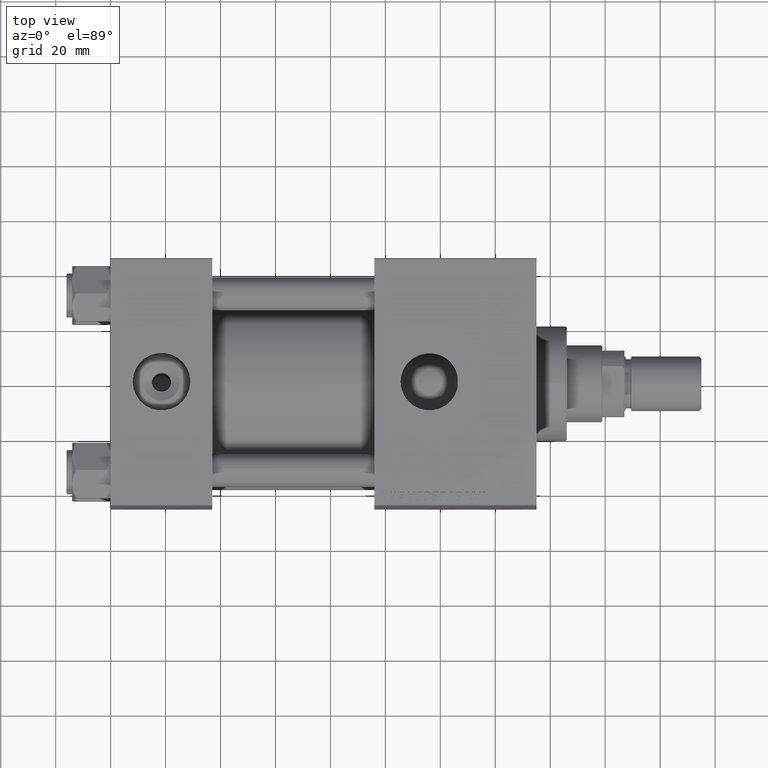
[diagram: clean part render]
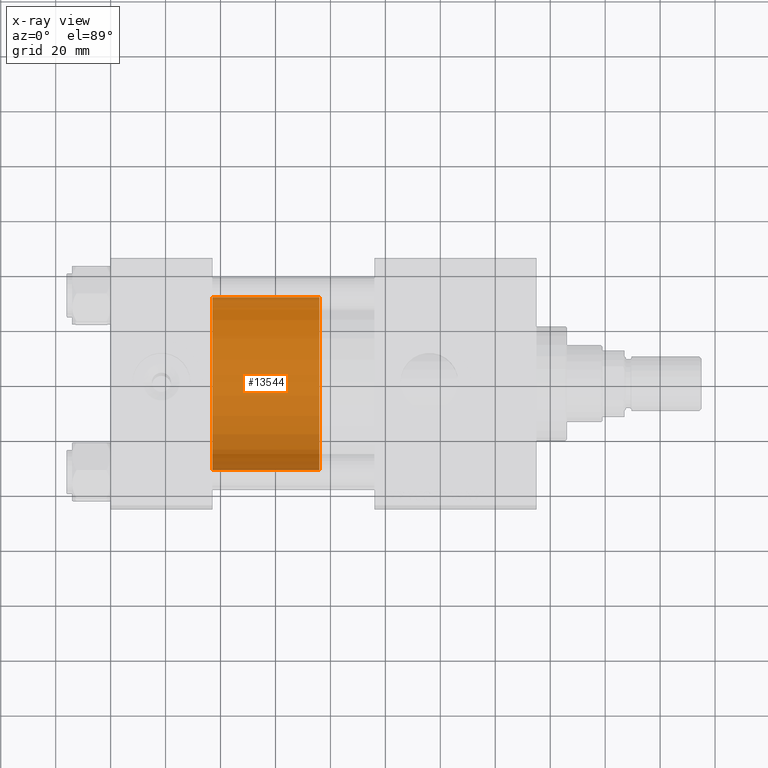
[diagram: x-ray — body ghosted, one internal face saturated and labeled with its STEP entity id]
A machine part, top view, then the same camera in x-ray: the body is ghosted and one INTERNAL B-rep face — a face not visible from any outside direction — is saturated and labeled: STEP entity #13544.
In plain terms, the highlighted cylindrical surface (partial cylindrical patch) has radius 31.5 mm, axis along (-1, 0, 0).
Its self-contained STEP definition (entity closure, byte-faithful):
#2355 = EDGE_CURVE ( 'NONE', #30759, #15328, #52672, .T. ) ;
#2368 = ORIENTED_EDGE ( 'NONE', *, *, #24471, .F. ) ;
#2802 = EDGE_CURVE ( 'NONE', #6289, #32467, #7539, .T. ) ;
#4979 = AXIS2_PLACEMENT_3D ( 'NONE', #11066, #27322, #52677 ) ;
#6289 = VERTEX_POINT ( 'NONE', #34455 ) ;
#7068 = LINE ( 'NONE', #14536, #27371 ) ;
#7539 = CIRCLE ( 'NONE', #4979, 31.50000000000000000 ) ;
#9015 = CARTESIAN_POINT ( 'NONE',  ( 0.000000000000000000, 0.000000000000000000, 0.000000000000000000 ) ) ;
#11066 = CARTESIAN_POINT ( 'NONE',  ( 0.000000000000000000, 0.000000000000000000, 39.00000000000000000 ) ) ;
#12281 = CARTESIAN_POINT ( 'NONE',  ( 0.000000000000000000, 0.000000000000000000, 39.00000000000000000 ) ) ;
#13544 = ADVANCED_FACE ( 'NONE', ( #48830 ), #44555, .T. ) ;
#14536 = CARTESIAN_POINT ( 'NONE',  ( -31.50000000000000000, 0.000000000000000000, 39.00000000000000000 ) ) ;
#14735 = DIRECTION ( 'NONE',  ( -0.000000000000000000, -0.000000000000000000, -1.000000000000000000 ) ) ;
#15328 = VERTEX_POINT ( 'NONE', #23555 ) ;
#20237 = ORIENTED_EDGE ( 'NONE', *, *, #2802, .F. ) ;
#23555 = CARTESIAN_POINT ( 'NONE',  ( -31.50000000000000000, 0.000000000000000000, 0.000000000000000000 ) ) ;
#24471 = EDGE_CURVE ( 'NONE', #32467, #15328, #7068, .T. ) ;
#24683 = EDGE_CURVE ( 'NONE', #6289, #30759, #39008, .T. ) ;
#27232 = ORIENTED_EDGE ( 'NONE', *, *, #2355, .T. ) ;
#27322 = DIRECTION ( 'NONE',  ( 0.000000000000000000, 0.000000000000000000, 1.000000000000000000 ) ) ;
#27326 = DIRECTION ( 'NONE',  ( -0.000000000000000000, -0.000000000000000000, -1.000000000000000000 ) ) ;
#27371 = VECTOR ( 'NONE', #27326, 1000.000000000000000 ) ;
#29019 = DIRECTION ( 'NONE',  ( 1.000000000000000000, 0.000000000000000000, 0.000000000000000000 ) ) ;
#30759 = VERTEX_POINT ( 'NONE', #52727 ) ;
#32467 = VERTEX_POINT ( 'NONE', #47368 ) ;
#32810 = DIRECTION ( 'NONE',  ( -0.000000000000000000, -0.000000000000000000, -1.000000000000000000 ) ) ;
#34455 = CARTESIAN_POINT ( 'NONE',  ( 31.50000000000000000, 3.857637417314162689E-15, 39.00000000000000000 ) ) ;
#34763 = AXIS2_PLACEMENT_3D ( 'NONE', #9015, #37531, #29019 ) ;
#37531 = DIRECTION ( 'NONE',  ( 0.000000000000000000, 0.000000000000000000, 1.000000000000000000 ) ) ;
#39008 = LINE ( 'NONE', #39267, #44399 ) ;
#39154 = EDGE_LOOP ( 'NONE', ( #20237, #42363, #27232, #2368 ) ) ;
#39267 = CARTESIAN_POINT ( 'NONE',  ( 31.50000000000000000, 3.857637417314162689E-15, 39.00000000000000000 ) ) ;
#42363 = ORIENTED_EDGE ( 'NONE', *, *, #24683, .T. ) ;
#44399 = VECTOR ( 'NONE', #14735, 1000.000000000000000 ) ;
#44555 = CYLINDRICAL_SURFACE ( 'NONE', #45295, 31.50000000000000000 ) ;
#45295 = AXIS2_PLACEMENT_3D ( 'NONE', #12281, #32810, #49082 ) ;
#47368 = CARTESIAN_POINT ( 'NONE',  ( -31.50000000000000000, 0.000000000000000000, 39.00000000000000000 ) ) ;
#48830 = FACE_OUTER_BOUND ( 'NONE', #39154, .T. ) ;
#49082 = DIRECTION ( 'NONE',  ( -1.000000000000000000, 0.000000000000000000, 0.000000000000000000 ) ) ;
#52672 = CIRCLE ( 'NONE', #34763, 31.50000000000000000 ) ;
#52677 = DIRECTION ( 'NONE',  ( 1.000000000000000000, 0.000000000000000000, 0.000000000000000000 ) ) ;
#52727 = CARTESIAN_POINT ( 'NONE',  ( 31.50000000000000000, 3.857637417314162689E-15, 0.000000000000000000 ) ) ;